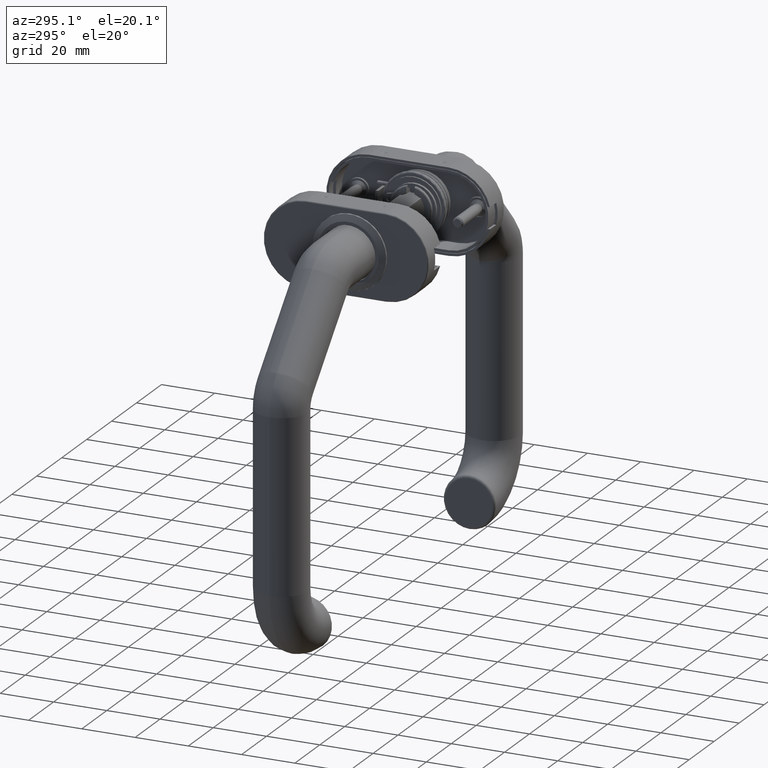
[diagram: clean part render]
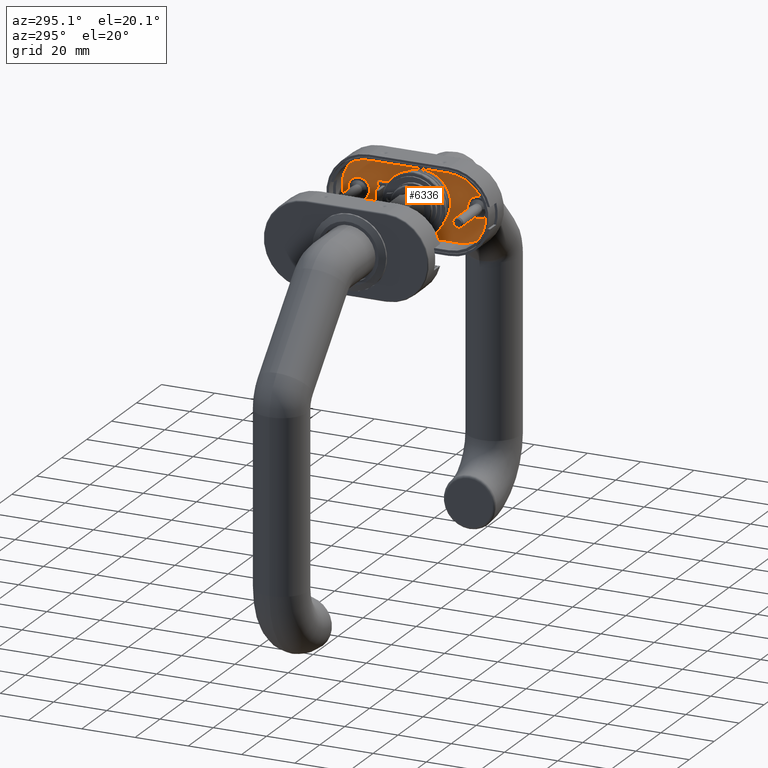
[diagram: same view with one face highlighted and labeled with its STEP entity id]
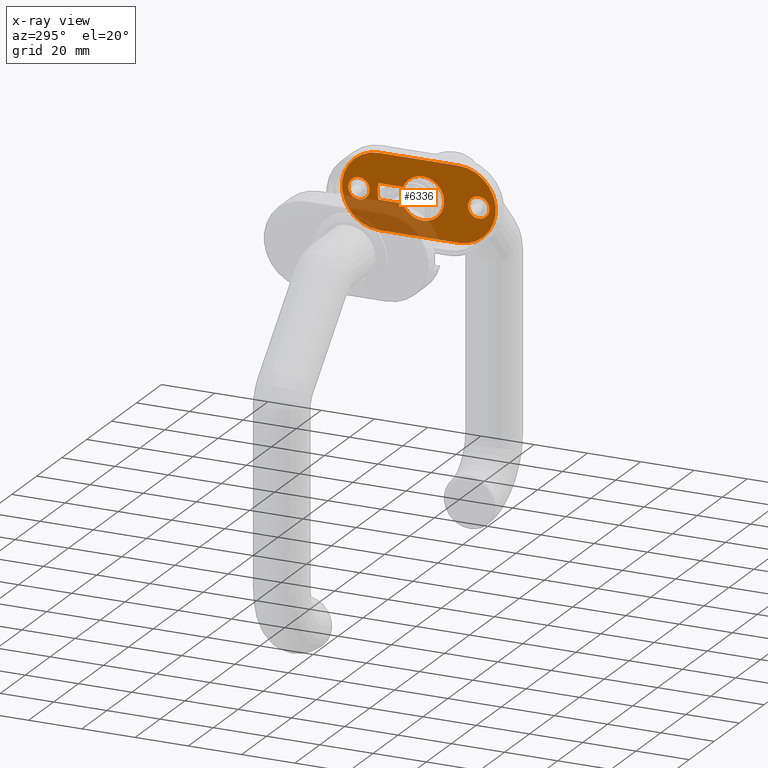
[diagram: x-ray of the same camera — body ghosted, the highlighted face saturated]
A machine part, auxiliary view. The second image highlights one B-rep face of the part: STEP entity #6336.
The next image is the same camera in x-ray: the body ghosted, the highlighted face saturated — about 26% of this face is hidden behind the body in this view.
In plain terms, the highlighted planar face has unit normal (-1, 0, -0).
Its self-contained STEP definition (entity closure, byte-faithful):
#793 = FACE_BOUND ( 'NONE', #35817, .T. ) ;
#2284 = DIRECTION ( 'NONE',  ( -1.000000000000000000, 0.000000000000000000, 0.000000000000000000 ) ) ;
#2403 = EDGE_LOOP ( 'NONE', ( #38103 ) ) ;
#3116 = PLANE ( 'NONE',  #18177 ) ;
#3173 = CARTESIAN_POINT ( 'NONE',  ( -3.000000000000001776, -14.90000000000000036, 8.000000000000000000 ) ) ;
#3538 = ORIENTED_EDGE ( 'NONE', *, *, #31952, .F. ) ;
#4576 = EDGE_CURVE ( 'NONE', #11450, #13836, #17300, .T. ) ;
#5340 = VERTEX_POINT ( 'NONE', #39722 ) ;
#5623 = AXIS2_PLACEMENT_3D ( 'NONE', #28454, #9970, #42360 ) ;
#6059 = AXIS2_PLACEMENT_3D ( 'NONE', #17734, #9835, #28807 ) ;
#6336 = ADVANCED_FACE ( 'NONE', ( #10410, #793, #38116, #28505 ), #3116, .T. ) ;
#6765 = VERTEX_POINT ( 'NONE', #9698 ) ;
#8124 = LINE ( 'NONE', #22999, #35797 ) ;
#8209 = LINE ( 'NONE', #37787, #45471 ) ;
#8461 = DIRECTION ( 'NONE',  ( -1.000000000000000000, 0.000000000000000000, 0.000000000000000000 ) ) ;
#9698 = CARTESIAN_POINT ( 'NONE',  ( 14.00000000000000178, -14.89999999999999858, 8.000000000000000000 ) ) ;
#9835 = DIRECTION ( 'NONE',  ( 0.000000000000000000, 0.000000000000000000, 1.000000000000000000 ) ) ;
#9970 = DIRECTION ( 'NONE',  ( -0.000000000000000000, -0.000000000000000000, -1.000000000000000000 ) ) ;
#10410 = FACE_BOUND ( 'NONE', #24211, .T. ) ;
#11450 = VERTEX_POINT ( 'NONE', #40792 ) ;
#11944 = EDGE_CURVE ( 'NONE', #15020, #15020, #26982, .T. ) ;
#12532 = DIRECTION ( 'NONE',  ( 0.000000000000000000, 0.000000000000000000, 1.000000000000000000 ) ) ;
#12724 = VECTOR ( 'NONE', #41761, 1000.000000000000000 ) ;
#12982 = CIRCLE ( 'NONE', #5623, 4.000000000000002665 ) ;
#13836 = VERTEX_POINT ( 'NONE', #41288 ) ;
#14109 = ORIENTED_EDGE ( 'NONE', *, *, #15401, .T. ) ;
#14394 = LINE ( 'NONE', #38461, #12724 ) ;
#14860 = ORIENTED_EDGE ( 'NONE', *, *, #41164, .F. ) ;
#15010 = DIRECTION ( 'NONE',  ( -5.928380151342101362E-16, -1.000000000000000000, 0.000000000000000000 ) ) ;
#15020 = VERTEX_POINT ( 'NONE', #29821 ) ;
#15401 = EDGE_CURVE ( 'NONE', #5340, #21383, #8124, .T. ) ;
#15862 = VERTEX_POINT ( 'NONE', #29614 ) ;
#16089 = CARTESIAN_POINT ( 'NONE',  ( -14.00000000000000178, 14.89999999999999858, 8.000000000000000000 ) ) ;
#16259 = ORIENTED_EDGE ( 'NONE', *, *, #23556, .T. ) ;
#17225 = EDGE_CURVE ( 'NONE', #24229, #13836, #44488, .T. ) ;
#17300 = LINE ( 'NONE', #3173, #21819 ) ;
#17686 = DIRECTION ( 'NONE',  ( -0.000000000000000000, -0.000000000000000000, -1.000000000000000000 ) ) ;
#17734 = CARTESIAN_POINT ( 'NONE',  ( -9.930783954031089578E-16, 4.500000000000000888, 8.000000000000000000 ) ) ;
#18177 = AXIS2_PLACEMENT_3D ( 'NONE', #36123, #32020, #31861 ) ;
#18598 = ORIENTED_EDGE ( 'NONE', *, *, #17225, .T. ) ;
#18790 = DIRECTION ( 'NONE',  ( -5.928380151342101362E-16, -1.000000000000000000, 0.000000000000000000 ) ) ;
#19811 = VECTOR ( 'NONE', #15010, 1000.000000000000000 ) ;
#19846 = VERTEX_POINT ( 'NONE', #25474 ) ;
#20048 = EDGE_CURVE ( 'NONE', #15862, #11450, #8209, .T. ) ;
#20168 = DIRECTION ( 'NONE',  ( -0.000000000000000000, -0.000000000000000000, -1.000000000000000000 ) ) ;
#21312 = CARTESIAN_POINT ( 'NONE',  ( 14.00000000000000355, 14.90000000000000213, 8.000000000000000000 ) ) ;
#21317 = DIRECTION ( 'NONE',  ( -1.000000000000000000, 0.000000000000000000, 0.000000000000000000 ) ) ;
#21383 = VERTEX_POINT ( 'NONE', #16089 ) ;
#21486 = LINE ( 'NONE', #42433, #19811 ) ;
#21819 = VECTOR ( 'NONE', #39664, 1000.000000000000000 ) ;
#21910 = EDGE_CURVE ( 'NONE', #39982, #15862, #22201, .T. ) ;
#22025 = EDGE_CURVE ( 'NONE', #19846, #39982, #41969, .T. ) ;
#22201 = CIRCLE ( 'NONE', #42431, 8.000000000000000000 ) ;
#22999 = CARTESIAN_POINT ( 'NONE',  ( -14.00000000000000178, -14.89999999999999858, 8.000000000000000000 ) ) ;
#23027 = ORIENTED_EDGE ( 'NONE', *, *, #22025, .F. ) ;
#23556 = EDGE_CURVE ( 'NONE', #21383, #31347, #33309, .T. ) ;
#24211 = EDGE_LOOP ( 'NONE', ( #14860, #18598, #38357, #27622, #35204, #23027 ) ) ;
#24229 = VERTEX_POINT ( 'NONE', #43586 ) ;
#24973 = ORIENTED_EDGE ( 'NONE', *, *, #11944, .F. ) ;
#25474 = CARTESIAN_POINT ( 'NONE',  ( 2.999999999999999112, 12.73447050483542675, 8.000000000000000000 ) ) ;
#26277 = EDGE_CURVE ( 'NONE', #31347, #6765, #14394, .T. ) ;
#26569 = CARTESIAN_POINT ( 'NONE',  ( 2.999999999999994671, 5.916198487095664760, 8.000000000000000000 ) ) ;
#26982 = CIRCLE ( 'NONE', #41048, 4.000000000000002665 ) ;
#27622 = ORIENTED_EDGE ( 'NONE', *, *, #20048, .F. ) ;
#27748 = DIRECTION ( 'NONE',  ( -1.000000000000000000, 0.000000000000000000, 0.000000000000000000 ) ) ;
#28454 = CARTESIAN_POINT ( 'NONE',  ( 0.000000000000000000, 22.50000000000000000, 8.000000000000000000 ) ) ;
#28505 = FACE_OUTER_BOUND ( 'NONE', #37476, .T. ) ;
#28546 = VERTEX_POINT ( 'NONE', #30123 ) ;
#28807 = DIRECTION ( 'NONE',  ( -1.000000000000000000, -1.813574543066661640E-15, 0.000000000000000000 ) ) ;
#29614 = CARTESIAN_POINT ( 'NONE',  ( -3.000000000000002665, 5.916198487095662983, 8.000000000000000000 ) ) ;
#29693 = CARTESIAN_POINT ( 'NONE',  ( 2.999999999999982681, -14.90000000000000213, 8.000000000000000000 ) ) ;
#29821 = CARTESIAN_POINT ( 'NONE',  ( -4.000000000000002665, -22.50000000000000000, 8.000000000000000000 ) ) ;
#30123 = CARTESIAN_POINT ( 'NONE',  ( -4.000000000000002665, 22.50000000000000000, 8.000000000000000000 ) ) ;
#30130 = DIRECTION ( 'NONE',  ( 0.000000000000000000, 1.000000000000000000, 0.000000000000000000 ) ) ;
#31347 = VERTEX_POINT ( 'NONE', #21312 ) ;
#31861 = DIRECTION ( 'NONE',  ( -1.000000000000000000, 0.000000000000000000, 0.000000000000000000 ) ) ;
#31908 = CARTESIAN_POINT ( 'NONE',  ( 3.673940397442055431E-16, -1.499999999999997780, 8.000000000000000000 ) ) ;
#31952 = EDGE_CURVE ( 'NONE', #5340, #6765, #35170, .T. ) ;
#32020 = DIRECTION ( 'NONE',  ( -0.000000000000000000, 0.000000000000000000, -1.000000000000000000 ) ) ;
#33309 = CIRCLE ( 'NONE', #46687, 14.00000000000000178 ) ;
#34620 = VECTOR ( 'NONE', #18790, 1000.000000000000000 ) ;
#34770 = DIRECTION ( 'NONE',  ( 1.976126717114032965E-16, 1.000000000000000000, 0.000000000000000000 ) ) ;
#35170 = CIRCLE ( 'NONE', #43259, 14.00000000000000178 ) ;
#35204 = ORIENTED_EDGE ( 'NONE', *, *, #21910, .F. ) ;
#35797 = VECTOR ( 'NONE', #30130, 1000.000000000000000 ) ;
#35817 = EDGE_LOOP ( 'NONE', ( #24973 ) ) ;
#36123 = CARTESIAN_POINT ( 'NONE',  ( 1.734723475976807094E-15, -14.90000000000000036, 8.000000000000000000 ) ) ;
#36942 = ORIENTED_EDGE ( 'NONE', *, *, #26277, .T. ) ;
#37476 = EDGE_LOOP ( 'NONE', ( #16259, #36942, #3538, #14109 ) ) ;
#37787 = CARTESIAN_POINT ( 'NONE',  ( -3.000000000000006661, -14.90000000000000036, 8.000000000000000000 ) ) ;
#38103 = ORIENTED_EDGE ( 'NONE', *, *, #43299, .F. ) ;
#38116 = FACE_BOUND ( 'NONE', #2403, .T. ) ;
#38357 = ORIENTED_EDGE ( 'NONE', *, *, #4576, .F. ) ;
#38461 = CARTESIAN_POINT ( 'NONE',  ( 14.00000000000000178, 14.89999999999999858, 8.000000000000000000 ) ) ;
#38511 = CARTESIAN_POINT ( 'NONE',  ( 0.000000000000000000, -22.50000000000000000, 8.000000000000000000 ) ) ;
#39664 = DIRECTION ( 'NONE',  ( 0.000000000000000000, 1.000000000000000000, 0.000000000000000000 ) ) ;
#39722 = CARTESIAN_POINT ( 'NONE',  ( -14.00000000000000000, -14.89999999999999858, 8.000000000000000000 ) ) ;
#39982 = VERTEX_POINT ( 'NONE', #26569 ) ;
#40792 = CARTESIAN_POINT ( 'NONE',  ( -3.000000000000001776, 12.73447050483542853, 8.000000000000000000 ) ) ;
#41048 = AXIS2_PLACEMENT_3D ( 'NONE', #38511, #20168, #27748 ) ;
#41164 = EDGE_CURVE ( 'NONE', #24229, #19846, #21486, .T. ) ;
#41288 = CARTESIAN_POINT ( 'NONE',  ( -3.000000000000001776, 15.08300524425836286, 8.000000000000000000 ) ) ;
#41761 = DIRECTION ( 'NONE',  ( 0.000000000000000000, -1.000000000000000000, 0.000000000000000000 ) ) ;
#41969 = LINE ( 'NONE', #29693, #34620 ) ;
#42089 = DIRECTION ( 'NONE',  ( -0.000000000000000000, -0.000000000000000000, -1.000000000000000000 ) ) ;
#42360 = DIRECTION ( 'NONE',  ( -1.000000000000000000, 0.000000000000000000, 0.000000000000000000 ) ) ;
#42431 = AXIS2_PLACEMENT_3D ( 'NONE', #31908, #17686, #21317 ) ;
#42433 = CARTESIAN_POINT ( 'NONE',  ( 2.999999999999982681, -14.90000000000000213, 8.000000000000000000 ) ) ;
#43259 = AXIS2_PLACEMENT_3D ( 'NONE', #44452, #12532, #8461 ) ;
#43299 = EDGE_CURVE ( 'NONE', #28546, #28546, #12982, .T. ) ;
#43586 = CARTESIAN_POINT ( 'NONE',  ( 3.000000000000001332, 15.08300524425836286, 8.000000000000000000 ) ) ;
#44452 = CARTESIAN_POINT ( 'NONE',  ( 1.734723475976807094E-15, -14.90000000000000036, 8.000000000000000000 ) ) ;
#44488 = CIRCLE ( 'NONE', #6059, 11.00000000000000178 ) ;
#45239 = CARTESIAN_POINT ( 'NONE',  ( 1.734723475976807094E-15, 14.90000000000000036, 8.000000000000000000 ) ) ;
#45471 = VECTOR ( 'NONE', #34770, 1000.000000000000000 ) ;
#46687 = AXIS2_PLACEMENT_3D ( 'NONE', #45239, #42089, #2284 ) ;